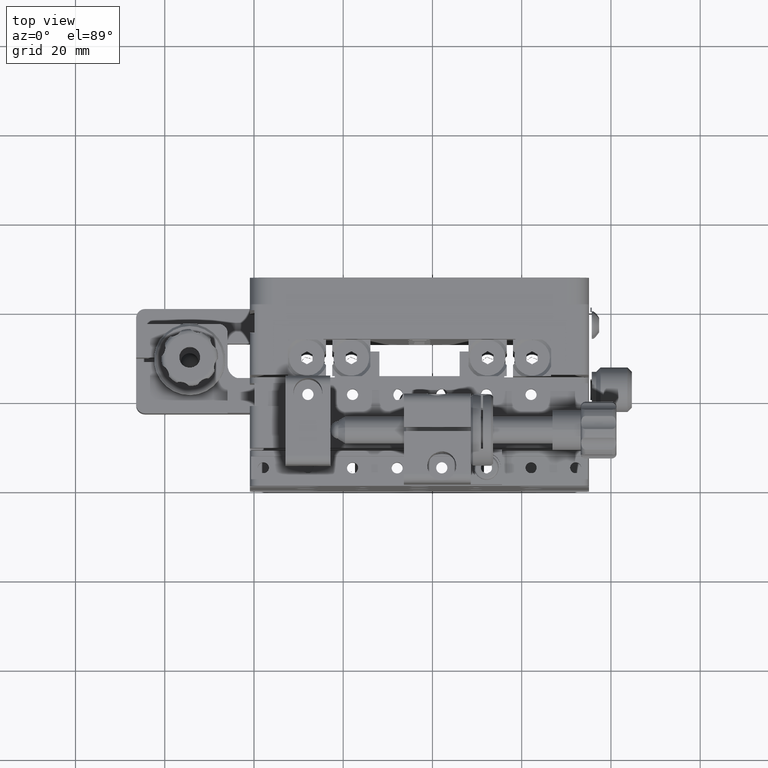
[diagram: clean part render]
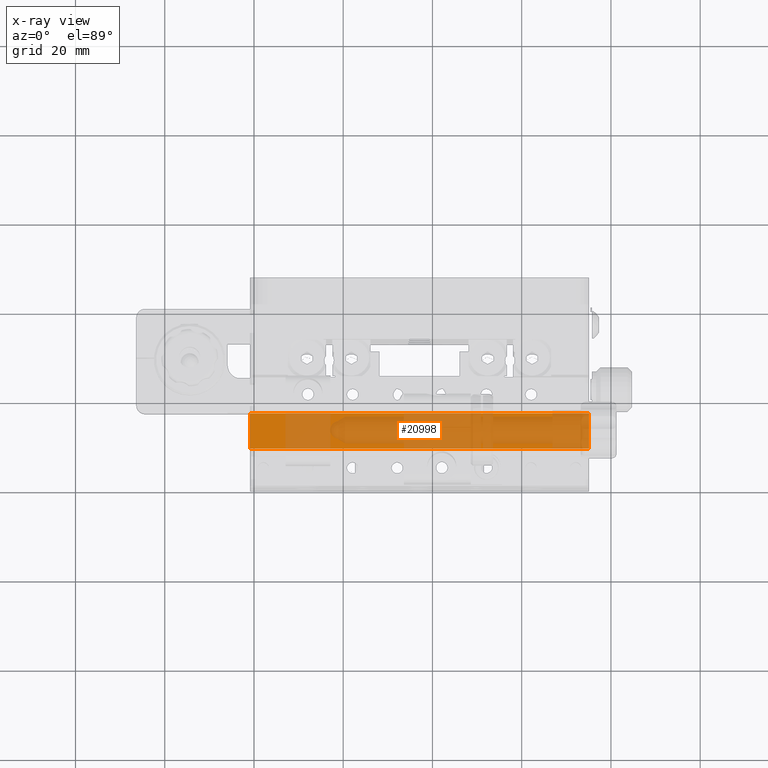
[diagram: x-ray — body ghosted, one internal face saturated and labeled with its STEP entity id]
A machine part, top view, then the same camera in x-ray: the body is ghosted and one INTERNAL B-rep face — a face not visible from any outside direction — is saturated and labeled: STEP entity #20998.
In plain terms, the highlighted planar face has unit normal (0, 0, -1).
Its self-contained STEP definition (entity closure, byte-faithful):
#3160 = FACE_OUTER_BOUND ( 'NONE', #29203, .T. ) ;
#4406 = EDGE_CURVE ( 'NONE', #18003, #26964, #40065, .T. ) ;
#5073 = DIRECTION ( 'NONE',  ( 0.0000000000000000000, 1.000000000000000000, 0.0000000000000000000 ) ) ;
#6683 = VECTOR ( 'NONE', #5073, 1000.000000000000000 ) ;
#8897 = DIRECTION ( 'NONE',  ( 0.0000000000000000000, 1.000000000000000000, 0.0000000000000000000 ) ) ;
#13320 = DIRECTION ( 'NONE',  ( 0.0000000000000000000, 0.0000000000000000000, -1.000000000000000000 ) ) ;
#14508 = VECTOR ( 'NONE', #24547, 1000.000000000000000 ) ;
#17274 = CARTESIAN_POINT ( 'NONE',  ( -20.90904611341227700, -3.579273254320100700, 132.6500000000002000 ) ) ;
#18003 = VERTEX_POINT ( 'NONE', #22110 ) ;
#19434 = ORIENTED_EDGE ( 'NONE', *, *, #47616, .T. ) ;
#20998 = ADVANCED_FACE ( 'NONE', ( #3160 ), #44178, .T. ) ;
#22110 = CARTESIAN_POINT ( 'NONE',  ( -20.90904611341227700, -11.47927325432015700, 132.6500000000002000 ) ) ;
#23520 = CARTESIAN_POINT ( 'NONE',  ( 55.09095388658772000, -11.47927325432015700, 132.6500000000002000 ) ) ;
#24485 = DIRECTION ( 'NONE',  ( 1.000000000000000000, 0.0000000000000000000, 0.0000000000000000000 ) ) ;
#24547 = DIRECTION ( 'NONE',  ( 1.000000000000000000, 0.0000000000000000000, 0.0000000000000000000 ) ) ;
#24846 = LINE ( 'NONE', #35905, #14508 ) ;
#26964 = VERTEX_POINT ( 'NONE', #17274 ) ;
#27149 = ORIENTED_EDGE ( 'NONE', *, *, #4406, .T. ) ;
#27278 = CARTESIAN_POINT ( 'NONE',  ( 55.09095388658772000, -3.579273254320100700, 132.6500000000002000 ) ) ;
#28090 = ORIENTED_EDGE ( 'NONE', *, *, #50333, .F. ) ;
#28353 = CARTESIAN_POINT ( 'NONE',  ( -95.90904611341227300, -11.47927325432015700, 132.6500000000002000 ) ) ;
#29203 = EDGE_LOOP ( 'NONE', ( #27149, #19434, #36052, #28090 ) ) ;
#30468 = VERTEX_POINT ( 'NONE', #23520 ) ;
#31946 = VERTEX_POINT ( 'NONE', #27278 ) ;
#35905 = CARTESIAN_POINT ( 'NONE',  ( -95.90904611341227300, -3.579273254320100700, 132.6500000000002000 ) ) ;
#35963 = CARTESIAN_POINT ( 'NONE',  ( 55.09095388658772000, -11.47927325432015700, 132.6500000000002000 ) ) ;
#36052 = ORIENTED_EDGE ( 'NONE', *, *, #41736, .F. ) ;
#36490 = VECTOR ( 'NONE', #24485, 1000.000000000000000 ) ;
#36618 = CARTESIAN_POINT ( 'NONE',  ( -95.90904611341227300, -11.47927325432015700, 132.6500000000002000 ) ) ;
#37666 = LINE ( 'NONE', #28353, #36490 ) ;
#40065 = LINE ( 'NONE', #43800, #49849 ) ;
#40455 = DIRECTION ( 'NONE',  ( -1.000000000000000000, 0.0000000000000000000, -0.0000000000000000000 ) ) ;
#40769 = AXIS2_PLACEMENT_3D ( 'NONE', #36618, #13320, #40455 ) ;
#41736 = EDGE_CURVE ( 'NONE', #30468, #31946, #47911, .T. ) ;
#43800 = CARTESIAN_POINT ( 'NONE',  ( -20.90904611341227700, -3.579273254320105600, 132.6500000000002000 ) ) ;
#44178 = PLANE ( 'NONE',  #40769 ) ;
#47616 = EDGE_CURVE ( 'NONE', #26964, #31946, #24846, .T. ) ;
#47911 = LINE ( 'NONE', #35963, #6683 ) ;
#49849 = VECTOR ( 'NONE', #8897, 1000.000000000000000 ) ;
#50333 = EDGE_CURVE ( 'NONE', #18003, #30468, #37666, .T. ) ;